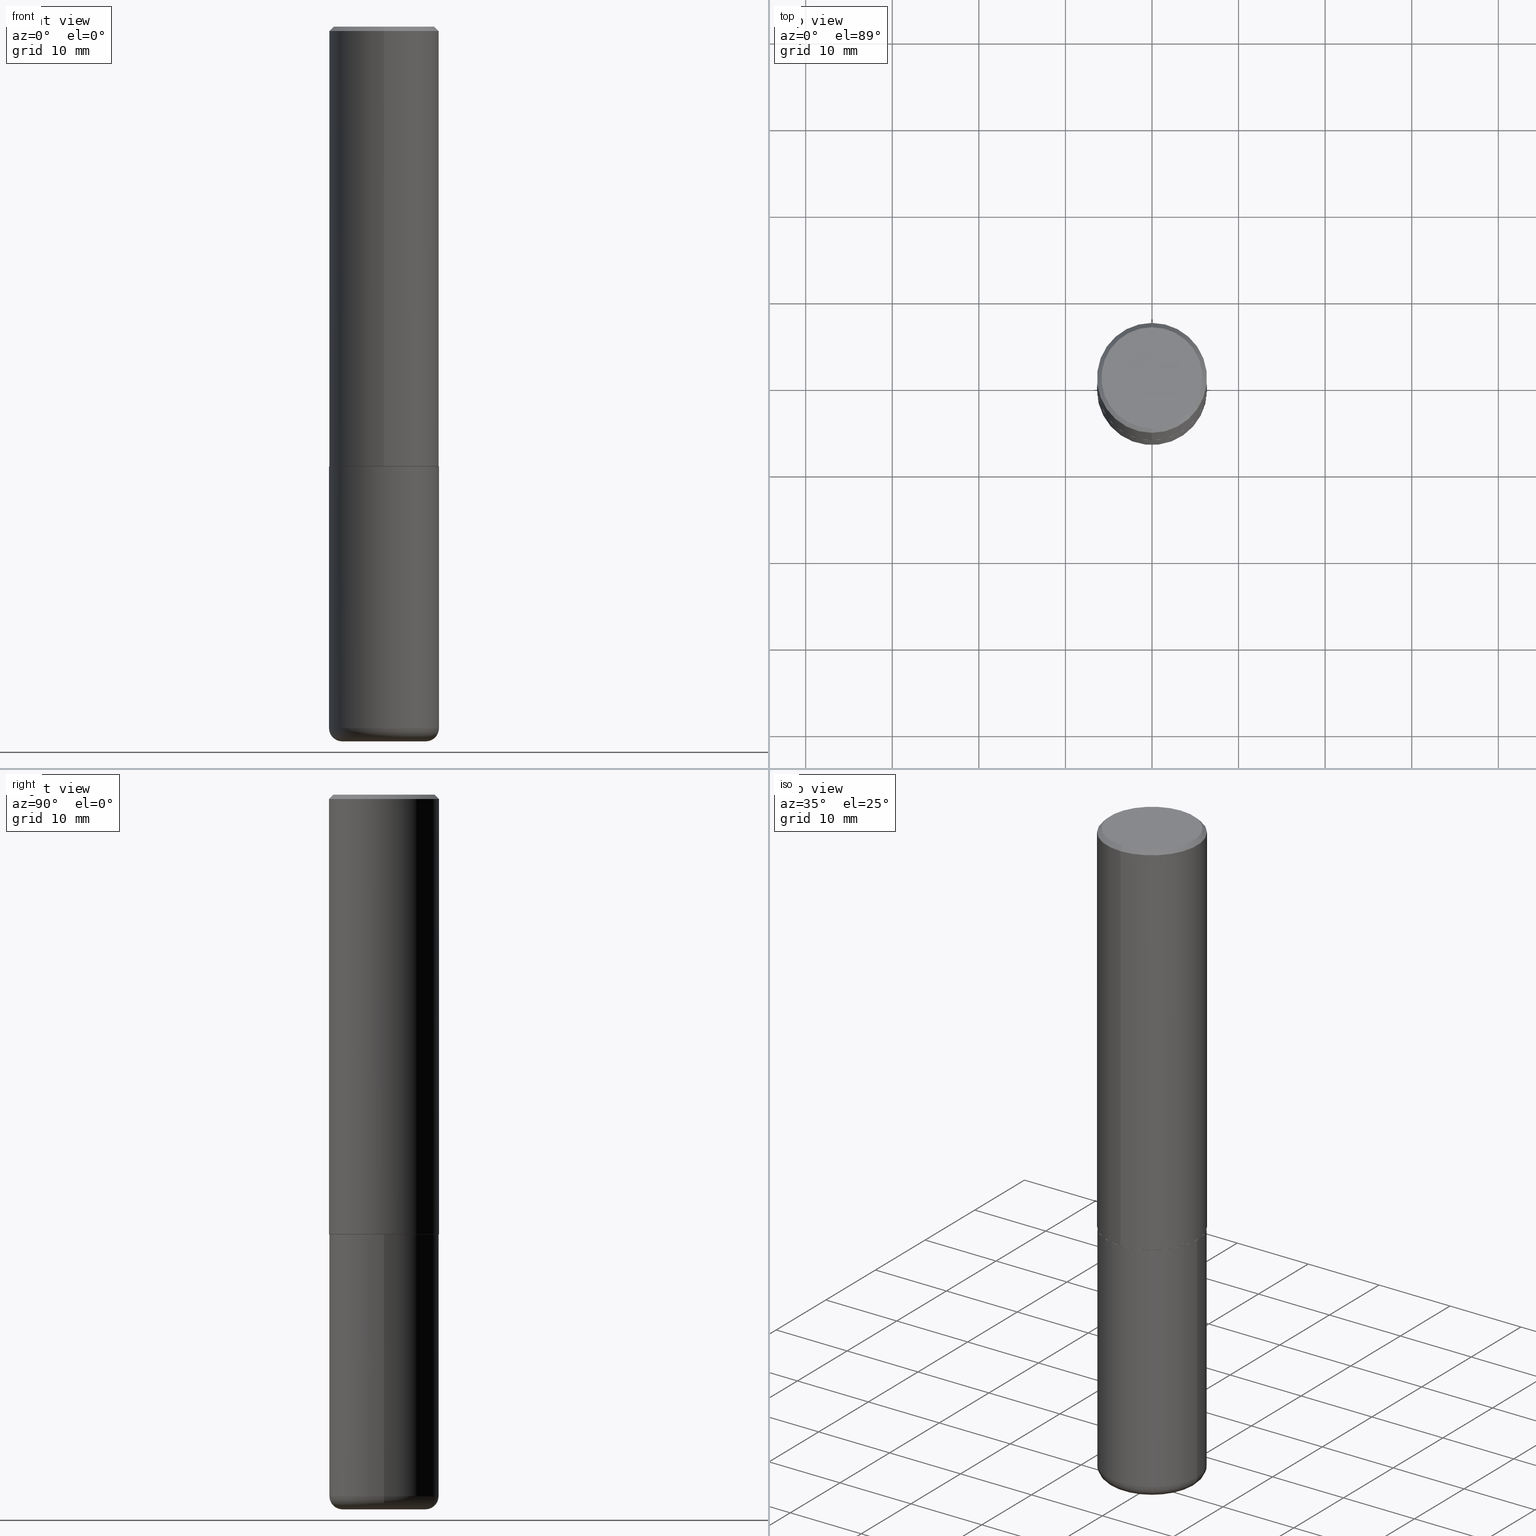
[diagram: canonical four-view strip — front | top / right | iso, engineering-drawing reading convention]
A machine part, canonical four-view strip (front | top / right | iso — engineering-drawing reading convention). The complete STEP part file that produces these views, byte-faithful:
ISO-10303-21;
HEADER;
FILE_DESCRIPTION (( 'STEP AP203' ),
    '1' );
FILE_NAME ('77350.STEP',
    '2024-05-02T19:31:13',
    ( '' ),
    ( '' ),
    'SwSTEP 2.0',
    'SolidWorks 2023',
    '' );
FILE_SCHEMA (( 'CONFIG_CONTROL_DESIGN' ));
ENDSEC;

DATA;
#1 = ORIENTED_EDGE ( 'NONE', *, *, #415, .F. ) ;
#2 = CARTESIAN_POINT ( 'NONE',  ( 4.888157982744351127E-29, -6.986943265517304311E-15, -2.000000000000000000 ) ) ;
#3 = DIRECTION ( 'NONE',  ( -2.444078991372175563E-29, 3.493471632758652550E-15, 1.000000000000000000 ) ) ;
#4 = COORDINATED_UNIVERSAL_TIME_OFFSET ( 5, 0, .BEHIND. ) ;
#5 = LOCAL_TIME ( 15, 31, 13.00000000000000000, #4 ) ;
#6 = ADVANCED_FACE ( 'NONE', ( #367 ), #71, .T. ) ;
#7 = DIRECTION ( 'NONE',  ( 1.000000000000000000, -6.982962677686270655E-15, 0.000000000000000000 ) ) ;
#8 = ORIENTED_EDGE ( 'NONE', *, *, #64, .T. ) ;
#9 = EDGE_LOOP ( 'NONE', ( #196, #36, #33, #401 ) ) ;
#10 = AXIS2_PLACEMENT_3D ( 'NONE', #218, #249, #280 ) ;
#11 = DIRECTION ( 'NONE',  ( -2.445468806185136597E-29, 3.491481338843145583E-15, 1.000000000000000000 ) ) ;
#12 = ORIENTED_EDGE ( 'NONE', *, *, #70, .T. ) ;
#13 = EDGE_CURVE ( 'NONE', #159, #324, #288, .T. ) ;
#14 = ORIENTED_EDGE ( 'NONE', *, *, #188, .T. ) ;
#15 = ADVANCED_FACE ( 'NONE', ( #131 ), #259, .F. ) ;
#16 = CARTESIAN_POINT ( 'NONE',  ( 1.606081415867839095E-15, 0.2299999999999997047, -6.474688858455407103E-16 ) ) ;
#17 = AXIS2_PLACEMENT_3D ( 'NONE', #177, #418, #84 ) ;
#18 = PLANE ( 'NONE',  #370 ) ;
#19 = ADVANCED_FACE ( 'NONE', ( #25 ), #83, .T. ) ;
#20 = CC_DESIGN_PERSON_AND_ORGANIZATION_ASSIGNMENT ( #278, #272, ( #337 ) ) ;
#21 = DIRECTION ( 'NONE',  ( -6.982962677686265922E-15, -1.000000000000000000, 3.278217592397112312E-15 ) ) ;
#22 = AXIS2_PLACEMENT_3D ( 'NONE', #237, #174, #21 ) ;
#23 = APPROVAL_PERSON_ORGANIZATION ( #119, #175, #209 ) ;
#24 = DIRECTION ( 'NONE',  ( -2.444078991372175563E-29, 3.493471632758652550E-15, 1.000000000000000000 ) ) ;
#25 = FACE_OUTER_BOUND ( 'NONE', #61, .T. ) ;
#26 = CARTESIAN_POINT ( 'NONE',  ( -1.745740669421519543E-15, -0.2500000000000072720, -1.998999999999999000 ) ) ;
#27 = DIRECTION ( 'NONE',  ( 1.000000000000000000, -6.982962677686261977E-15, 0.000000000000000000 ) ) ;
#28 = ORIENTED_EDGE ( 'NONE', *, *, #364, .F. ) ;
#29 = APPROVAL_PERSON_ORGANIZATION ( #271, #206, #153 ) ;
#30 = DIRECTION ( 'NONE',  ( 2.444078991372175563E-29, -3.493471632758652550E-15, -1.000000000000000000 ) ) ;
#31 = DATE_AND_TIME ( #147, #74 ) ;
#32 = DIRECTION ( 'NONE',  ( -6.982962677686265133E-15, -1.000000000000000000, 3.291383124896702687E-15 ) ) ;
#33 = ORIENTED_EDGE ( 'NONE', *, *, #239, .T. ) ;
#34 = CIRCLE ( 'NONE', #302, 0.05999999999999994227 ) ;
#35 = ORIENTED_EDGE ( 'NONE', *, *, #270, .F. ) ;
#36 = ORIENTED_EDGE ( 'NONE', *, *, #258, .T. ) ;
#37 = CARTESIAN_POINT ( 'NONE',  ( 0.000000000000000000, 0.000000000000000000, 0.000000000000000000 ) ) ;
#38 = AXIS2_PLACEMENT_3D ( 'NONE', #382, #30, #215 ) ;
#39 = MANIFOLD_SOLID_BREP ( 'Body-Move/Copy2[1]', #99 ) ;
#40 = ORIENTED_EDGE ( 'NONE', *, *, #332, .F. ) ;
#41 = EDGE_CURVE ( 'NONE', #226, #139, #394, .T. ) ;
#42 = DATE_TIME_ROLE ( 'creation_date' ) ;
#43 = CARTESIAN_POINT ( 'NONE',  ( 0.1899999999999999745, -1.246458837967002615E-14, -3.189999999999999947 ) ) ;
#44 = PLANE ( 'NONE',  #185 ) ;
#45 = DIRECTION ( 'NONE',  ( -2.445468806185136877E-29, 3.491481338843145188E-15, 1.000000000000000000 ) ) ;
#46 = CC_DESIGN_APPROVAL ( #206, ( #152 ) ) ;
#47 = COORDINATED_UNIVERSAL_TIME_OFFSET ( 5, 0, .BEHIND. ) ;
#48 = DIRECTION ( 'NONE',  ( 0.000000000000000000, 0.000000000000000000, 1.000000000000000000 ) ) ;
#49 = CARTESIAN_POINT ( 'NONE',  ( 0.000000000000000000, 0.000000000000000000, 0.000000000000000000 ) ) ;
#50 = PERSON_AND_ORGANIZATION ( #121, #336 ) ;
#51 = MECHANICAL_CONTEXT ( 'NONE', #340, 'mechanical' ) ;
#52 = DIRECTION ( 'NONE',  ( 7.105427357601001859E-15, 1.000000000000000000, -3.491481338843145583E-15 ) ) ;
#53 = DATE_AND_TIME ( #342, #95 ) ;
#54 = DIRECTION ( 'NONE',  ( -2.444078991372175563E-29, 3.493471632758652550E-15, 1.000000000000000000 ) ) ;
#55 = DIRECTION ( 'NONE',  ( -6.982962677686265922E-15, -1.000000000000000000, 3.493471632758652550E-15 ) ) ;
#56 = ORIENTED_EDGE ( 'NONE', *, *, #305, .T. ) ;
#57 = CIRCLE ( 'NONE', #162, 0.2500000000000002776 ) ;
#58 = TOROIDAL_SURFACE ( 'NONE', #322, 0.1899999999999999745, 0.05999999999999995615 ) ;
#59 = CARTESIAN_POINT ( 'NONE',  ( -0.1899999999999999745, -9.787794272965444556E-15, -3.189999999999999947 ) ) ;
#60 = PRODUCT_RELATED_PRODUCT_CATEGORY ( 'detail', '', ( #337 ) ) ;
#61 = EDGE_LOOP ( 'NONE', ( #198, #158, #223, #250 ) ) ;
#62 = APPROVAL_DATE_TIME ( #357, #349 ) ;
#63 = EDGE_LOOP ( 'NONE', ( #56, #75, #352, #356 ) ) ;
#64 = EDGE_CURVE ( 'NONE', #159, #348, #202, .T. ) ;
#65 = AXIS2_PLACEMENT_3D ( 'NONE', #374, #244, #378 ) ;
#66 = ORIENTED_EDGE ( 'NONE', *, *, #252, .F. ) ;
#67 = PERSON_AND_ORGANIZATION_ROLE ( 'design_supplier' ) ;
#68 = VERTEX_POINT ( 'NONE', #111 ) ;
#69 = CARTESIAN_POINT ( 'NONE',  ( 7.947773620101693940E-29, -1.134731435124022443E-14, -3.250000000000000000 ) ) ;
#70 = EDGE_CURVE ( 'NONE', #324, #159, #248, .T. ) ;
#71 = CYLINDRICAL_SURFACE ( 'NONE', #94, 0.2500000000000000000 ) ;
#72 = DIRECTION ( 'NONE',  ( -2.445468806185136597E-29, 3.491481338843145583E-15, 1.000000000000000000 ) ) ;
#73 = ORIENTED_EDGE ( 'NONE', *, *, #13, .F. ) ;
#74 = LOCAL_TIME ( 15, 31, 13.00000000000000000, #251 ) ;
#75 = ORIENTED_EDGE ( 'NONE', *, *, #246, .T. ) ;
#76 = ADVANCED_FACE ( 'NONE', ( #277 ), #409, .T. ) ;
#77 = DIRECTION ( 'NONE',  ( 1.000000000000000000, -6.982962677686265133E-15, 4.883557194083112340E-29 ) ) ;
#78 = DIRECTION ( 'NONE',  ( 1.000000000000000000, 0.000000000000000000, 0.000000000000000000 ) ) ;
#79 = CARTESIAN_POINT ( 'NONE',  ( 7.801045491730585789E-29, -1.113782547090963453E-14, -3.189999999999999947 ) ) ;
#80 = AXIS2_PLACEMENT_3D ( 'NONE', #49, #173, #404 ) ;
#81 = AXIS2_PLACEMENT_3D ( 'NONE', #156, #3, #128 ) ;
#82 = APPLICATION_CONTEXT ( 'configuration controlled 3d designs of mechanical parts and assemblies' ) ;
#83 = CYLINDRICAL_SURFACE ( 'NONE', #88, 0.2500000000000001110 ) ;
#84 = DIRECTION ( 'NONE',  ( -1.000000000000000000, 6.982962677686265922E-15, -4.876176775795935793E-29 ) ) ;
#85 = LINE ( 'NONE', #416, #343 ) ;
#86 = CARTESIAN_POINT ( 'NONE',  ( 0.2500000000000000000, -1.745740669421566678E-15, 1.219044193948983948E-29 ) ) ;
#87 = DIRECTION ( 'NONE',  ( 1.000000000000000000, -6.982962677686265133E-15, 4.883557194083112340E-29 ) ) ;
#88 = AXIS2_PLACEMENT_3D ( 'NONE', #269, #383, #211 ) ;
#89 = CARTESIAN_POINT ( 'NONE',  ( 1.745740669421567269E-15, 0.2499999999999999722, -0.02000000000000096492 ) ) ;
#90 = CARTESIAN_POINT ( 'NONE',  ( 0.2500000000000000000, -8.728703347107857054E-15, -2.000000000000000000 ) ) ;
#91 = ORIENTED_EDGE ( 'NONE', *, *, #364, .T. ) ;
#92 = FACE_OUTER_BOUND ( 'NONE', #298, .T. ) ;
#93 = DIRECTION ( 'NONE',  ( -4.937700262165053702E-15, -0.7071067811866175168, 0.7071067811864775177 ) ) ;
#94 = AXIS2_PLACEMENT_3D ( 'NONE', #37, #371, #329 ) ;
#95 = LOCAL_TIME ( 15, 31, 13.00000000000000000, #47 ) ;
#96 = EDGE_CURVE ( 'NONE', #369, #126, #85, .T. ) ;
#97 = UNCERTAINTY_MEASURE_WITH_UNIT (LENGTH_MEASURE( 1.000000000000000082E-05 ), #379, 'distance_accuracy_value', 'NONE');
#98 = ORIENTED_EDGE ( 'NONE', *, *, #372, .F. ) ;
#99 = CLOSED_SHELL ( 'NONE', ( #76, #299, #265, #6, #358, #390 ) ) ;
#100 = EDGE_LOOP ( 'NONE', ( #191, #231, #220, #190 ) ) ;
#101 = CARTESIAN_POINT ( 'NONE',  ( 7.947773620101693940E-29, -1.134731435124022443E-14, -3.250000000000000000 ) ) ;
#102 = EDGE_CURVE ( 'NONE', #126, #137, #403, .T. ) ;
#103 = EDGE_LOOP ( 'NONE', ( #327, #323 ) ) ;
#104 = SECURITY_CLASSIFICATION_LEVEL ( 'unclassified' ) ;
#105 = CARTESIAN_POINT ( 'NONE',  ( 7.801045491730585789E-29, -1.113782547090963453E-14, -3.189999999999999947 ) ) ;
#106 = CONICAL_SURFACE ( 'NONE', #10, 0.2500000000000000555, 0.7853981633974466137 ) ;
#107 = PERSON_AND_ORGANIZATION ( #121, #336 ) ;
#108 = VERTEX_POINT ( 'NONE', #334 ) ;
#109 = CIRCLE ( 'NONE', #295, 0.2500000000000000000 ) ;
#110 = CARTESIAN_POINT ( 'NONE',  ( 4.888157982744351127E-29, -6.986943265517304311E-15, -2.000000000000000000 ) ) ;
#111 = CARTESIAN_POINT ( 'NONE',  ( -1.646519519465166376E-15, -0.2299999999999997047, 1.115557654912385711E-15 ) ) ;
#112 = DIRECTION ( 'NONE',  ( -2.445468806185136597E-29, 3.491481338843145583E-15, 1.000000000000000000 ) ) ;
#113 = CONICAL_SURFACE ( 'NONE', #354, 0.2489999999999999991, 0.7853981633975507526 ) ;
#114 = AXIS2_PLACEMENT_3D ( 'NONE', #176, #48, #78 ) ;
#115 = CARTESIAN_POINT ( 'NONE',  ( 4.888157982744351127E-29, -6.986943265517304311E-15, -2.000000000000000000 ) ) ;
#116 = EDGE_CURVE ( 'NONE', #139, #126, #171, .T. ) ;
#117 = CARTESIAN_POINT ( 'NONE',  ( 0.000000000000000000, 0.000000000000000000, 0.000000000000000000 ) ) ;
#118 = CARTESIAN_POINT ( 'NONE',  ( 1.776356839400251254E-15, 0.2500000000000001110, -8.733679081896635319E-16 ) ) ;
#119 = PERSON_AND_ORGANIZATION ( #121, #336 ) ;
#120 = DIRECTION ( 'NONE',  ( -2.445468806185136597E-29, 3.491481338843145583E-15, 1.000000000000000000 ) ) ;
#121 = PERSON ( 'UNSPECIFIED', 'UNSPECIFIED', 'UNSPECIFIED', ('UNSPECIFIED'), ('UNSPECIFIED'), ('UNSPECIFIED') ) ;
#122 = DIRECTION ( 'NONE',  ( -2.444078991372175563E-29, 3.493471632758652550E-15, 1.000000000000000000 ) ) ;
#123 = PERSON_AND_ORGANIZATION ( #121, #336 ) ;
#124 = DIRECTION ( 'NONE',  ( -1.000000000000000000, 7.105427357600997914E-15, 0.000000000000000000 ) ) ;
#125 = DIRECTION ( 'NONE',  ( -2.444078991372175563E-29, 3.493471632758652550E-15, 1.000000000000000000 ) ) ;
#126 = VERTEX_POINT ( 'NONE', #89 ) ;
#127 = CARTESIAN_POINT ( 'NONE',  ( -1.738757706743831360E-15, -0.2490000000000069935, -1.999999999999999112 ) ) ;
#128 = DIRECTION ( 'NONE',  ( -6.982962677686265133E-15, -1.000000000000000000, 3.291383124896702687E-15 ) ) ;
#129 = SECURITY_CLASSIFICATION ( '', '', #104 ) ;
#130 = CC_DESIGN_PERSON_AND_ORGANIZATION_ASSIGNMENT ( #50, #217, ( #152 ) ) ;
#131 = FACE_OUTER_BOUND ( 'NONE', #359, .T. ) ;
#132 = DIRECTION ( 'NONE',  ( -2.444078991372175563E-29, 3.493471632758652550E-15, 1.000000000000000000 ) ) ;
#133 = AXIS2_PLACEMENT_3D ( 'NONE', #304, #275, #201 ) ;
#134 = ORIENTED_EDGE ( 'NONE', *, *, #41, .F. ) ;
#135 = CC_DESIGN_DATE_AND_TIME_ASSIGNMENT ( #297, #318, ( #129 ) ) ;
#136 = DIRECTION ( 'NONE',  ( -2.444078991372175563E-29, 3.493471632758652550E-15, 1.000000000000000000 ) ) ;
#137 = VERTEX_POINT ( 'NONE', #306 ) ;
#138 = PERSON_AND_ORGANIZATION ( #121, #336 ) ;
#139 = VERTEX_POINT ( 'NONE', #214 ) ;
#140 = VECTOR ( 'NONE', #143, 39.37007874015748143 ) ;
#141 = AXIS2_PLACEMENT_3D ( 'NONE', #388, #54, #55 ) ;
#142 = DIRECTION ( 'NONE',  ( 6.982962677686265922E-15, 1.000000000000000000, -3.493471632758652550E-15 ) ) ;
#143 = DIRECTION ( 'NONE',  ( -2.445468806185136877E-29, 3.491481338843145188E-15, 1.000000000000000000 ) ) ;
#144 = DIRECTION ( 'NONE',  ( 1.000000000000000000, -6.982962677686270655E-15, 0.000000000000000000 ) ) ;
#145 = CIRCLE ( 'NONE', #257, 0.2500000000000000000 ) ;
#146 = FACE_OUTER_BOUND ( 'NONE', #103, .T. ) ;
#147 = CALENDAR_DATE ( 2024, 2, 5 ) ;
#148 = FACE_OUTER_BOUND ( 'NONE', #63, .T. ) ;
#149 = EDGE_CURVE ( 'NONE', #324, #330, #273, .T. ) ;
#150 = EDGE_LOOP ( 'NONE', ( #392, #28 ) ) ;
#151 = AXIS2_PLACEMENT_3D ( 'NONE', #105, #291, #7 ) ;
#152 = PRODUCT_DEFINITION_FORMATION_WITH_SPECIFIED_SOURCE ( 'ANY', '', #337, .NOT_KNOWN. ) ;
#153 = APPROVAL_ROLE ( '' ) ;
#154 = LINE ( 'NONE', #253, #328 ) ;
#155 = ORIENTED_EDGE ( 'NONE', *, *, #102, .T. ) ;
#156 = CARTESIAN_POINT ( 'NONE',  ( 4.888157982744351127E-29, -6.986943265517304311E-15, -2.000000000000000000 ) ) ;
#157 = AXIS2_PLACEMENT_3D ( 'NONE', #79, #172, #144 ) ;
#158 = ORIENTED_EDGE ( 'NONE', *, *, #213, .T. ) ;
#159 = VERTEX_POINT ( 'NONE', #381 ) ;
#160 = EDGE_LOOP ( 'NONE', ( #285, #266, #313, #98 ) ) ;
#161 = CARTESIAN_POINT ( 'NONE',  ( 4.888157982744373443E-31, -6.986943265517335816E-17, -0.02000000000000009062 ) ) ;
#162 = AXIS2_PLACEMENT_3D ( 'NONE', #314, #24, #284 ) ;
#163 = COORDINATED_UNIVERSAL_TIME_OFFSET ( 5, 0, .BEHIND. ) ;
#164 = ORIENTED_EDGE ( 'NONE', *, *, #239, .F. ) ;
#165 = CALENDAR_DATE ( 2024, 2, 5 ) ;
#166 = ORIENTED_EDGE ( 'NONE', *, *, #258, .F. ) ;
#167 = ADVANCED_FACE ( 'NONE', ( #405 ), #361, .T. ) ;
#168 = AXIS2_PLACEMENT_3D ( 'NONE', #115, #407, #241 ) ;
#169 = DIRECTION ( 'NONE',  ( -2.444078991372175283E-29, 3.493471632758652550E-15, 1.000000000000000000 ) ) ;
#170 = VECTOR ( 'NONE', #187, 39.37007874015748854 ) ;
#171 = LINE ( 'NONE', #118, #321 ) ;
#172 = DIRECTION ( 'NONE',  ( -2.445468806185136597E-29, 3.491481338843145583E-15, 1.000000000000000000 ) ) ;
#173 = DIRECTION ( 'NONE',  ( -2.444078991372175563E-29, 3.493471632758652550E-15, 1.000000000000000000 ) ) ;
#174 = DIRECTION ( 'NONE',  ( -2.444078991372175563E-29, 3.493471632758652550E-15, 1.000000000000000000 ) ) ;
#175 = APPROVAL ( #373, 'UNSPECIFIED' ) ;
#176 = CARTESIAN_POINT ( 'NONE',  ( 0.000000000000000000, 0.000000000000000000, 0.000000000000000000 ) ) ;
#177 = CARTESIAN_POINT ( 'NONE',  ( 4.890937612370273194E-29, -6.982962677686291165E-15, -2.000000000000000000 ) ) ;
#178 = CIRCLE ( 'NONE', #228, 0.2500000000000000555 ) ;
#179 = PERSON_AND_ORGANIZATION ( #121, #336 ) ;
#180 = ADVANCED_FACE ( 'NONE', ( #207 ), #341, .T. ) ;
#181 = CARTESIAN_POINT ( 'NONE',  ( -0.2500000000000000000, -7.284037234897712778E-15, -2.000000000000000000 ) ) ;
#182 = ORIENTED_EDGE ( 'NONE', *, *, #332, .T. ) ;
#183 = FACE_OUTER_BOUND ( 'NONE', #9, .T. ) ;
#184 = ORIENTED_EDGE ( 'NONE', *, *, #376, .T. ) ;
#185 = AXIS2_PLACEMENT_3D ( 'NONE', #110, #169, #389 ) ;
#186 = LOCAL_TIME ( 15, 31, 13.00000000000000000, #268 ) ;
#187 = DIRECTION ( 'NONE',  ( -4.851104656540954809E-15, -0.7071067811865486830, -0.7071067811865462405 ) ) ;
#188 = EDGE_CURVE ( 'NONE', #68, #369, #227, .T. ) ;
#189 = CC_DESIGN_APPROVAL ( #349, ( #129 ) ) ;
#190 = ORIENTED_EDGE ( 'NONE', *, *, #96, .F. ) ;
#191 = ORIENTED_EDGE ( 'NONE', *, *, #188, .F. ) ;
#192 = ORIENTED_EDGE ( 'NONE', *, *, #225, .F. ) ;
#193 = DIRECTION ( 'NONE',  ( -6.982962677686266711E-15, -1.000000000000000000, 3.491481338843145583E-15 ) ) ;
#194 = AXIS2_PLACEMENT_3D ( 'NONE', #16, #377, #142 ) ;
#195 =( GEOMETRIC_REPRESENTATION_CONTEXT ( 3 ) GLOBAL_UNCERTAINTY_ASSIGNED_CONTEXT ( ( #97 ) ) GLOBAL_UNIT_ASSIGNED_CONTEXT ( ( #379, #339, #274 ) ) REPRESENTATION_CONTEXT ( 'NONE', 'WORKASPACE' ) );
#196 = ORIENTED_EDGE ( 'NONE', *, *, #320, .F. ) ;
#197 = ADVANCED_FACE ( 'NONE', ( #242 ), #44, .F. ) ;
#198 = ORIENTED_EDGE ( 'NONE', *, *, #116, .F. ) ;
#199 = DATE_AND_TIME ( #205, #186 ) ;
#200 = CARTESIAN_POINT ( 'NONE',  ( 1.675911042644703182E-15, 0.2299999999999997047, -4.914392961565924424E-16 ) ) ;
#201 = DIRECTION ( 'NONE',  ( -6.982962677686265922E-15, -1.000000000000000000, 3.493471632758652550E-15 ) ) ;
#202 = LINE ( 'NONE', #333, #256 ) ;
#203 = ADVANCED_FACE ( 'NONE', ( #183 ), #113, .T. ) ;
#204 = CIRCLE ( 'NONE', #81, 0.2489999999999999991 ) ;
#205 = CALENDAR_DATE ( 2024, 2, 5 ) ;
#206 = APPROVAL ( #387, 'UNSPECIFIED' ) ;
#207 = FACE_OUTER_BOUND ( 'NONE', #160, .T. ) ;
#208 = DIRECTION ( 'NONE',  ( -2.445468806185136597E-29, 3.491481338843145583E-15, 1.000000000000000000 ) ) ;
#209 = APPROVAL_ROLE ( '' ) ;
#210 = DIRECTION ( 'NONE',  ( 5.024295867788576727E-15, 0.7071067811866224018, 0.7071067811864726327 ) ) ;
#211 = DIRECTION ( 'NONE',  ( -6.982962677686266711E-15, -1.000000000000000000, 3.493471632758652550E-15 ) ) ;
#212 = AXIS2_PLACEMENT_3D ( 'NONE', #69, #11, #368 ) ;
#213 = EDGE_CURVE ( 'NONE', #139, #226, #57, .T. ) ;
#214 = CARTESIAN_POINT ( 'NONE',  ( 1.776356839400276103E-15, 0.2499999999999932832, -1.999000000000000776 ) ) ;
#215 = DIRECTION ( 'NONE',  ( 6.982962677686265133E-15, 1.000000000000000000, -3.500180241882336472E-15 ) ) ;
#216 = CARTESIAN_POINT ( 'NONE',  ( -1.715124499442882496E-15, -0.2500000000000001110, -0.01999999999999921632 ) ) ;
#217 = PERSON_AND_ORGANIZATION_ROLE ( 'creator' ) ;
#218 = CARTESIAN_POINT ( 'NONE',  ( 4.888157982744373443E-31, -6.986943265517335816E-17, -0.02000000000000009062 ) ) ;
#219 = ADVANCED_FACE ( 'NONE', ( #353 ), #106, .T. ) ;
#220 = ORIENTED_EDGE ( 'NONE', *, *, #393, .T. ) ;
#221 = CIRCLE ( 'NONE', #363, 0.2489999999999999991 ) ;
#222 = AXIS2_PLACEMENT_3D ( 'NONE', #247, #385, #27 ) ;
#223 = ORIENTED_EDGE ( 'NONE', *, *, #372, .T. ) ;
#224 = DIMENSIONAL_EXPONENTS ( 1.000000000000000000, 0.000000000000000000, 0.000000000000000000, 0.000000000000000000, 0.000000000000000000, 0.000000000000000000, 0.000000000000000000 ) ;
#225 = EDGE_CURVE ( 'NONE', #233, #397, #221, .T. ) ;
#226 = VERTEX_POINT ( 'NONE', #26 ) ;
#227 = CIRCLE ( 'NONE', #133, 0.2299999999999997047 ) ;
#228 = AXIS2_PLACEMENT_3D ( 'NONE', #161, #136, #264 ) ;
#229 = ORIENTED_EDGE ( 'NONE', *, *, #225, .T. ) ;
#230 = DIRECTION ( 'NONE',  ( 2.438088387897960049E-29, -3.491481338843145188E-15, -1.000000000000000000 ) ) ;
#231 = ORIENTED_EDGE ( 'NONE', *, *, #252, .T. ) ;
#232 = ADVANCED_FACE ( 'NONE', ( #286 ), #240, .T. ) ;
#233 = VERTEX_POINT ( 'NONE', #127 ) ;
#234 = CARTESIAN_POINT ( 'NONE',  ( 1.772804125721499462E-15, 0.2489999999999930047, -2.000000000000000888 ) ) ;
#235 = CC_DESIGN_SECURITY_CLASSIFICATION ( #129, ( #152 ) ) ;
#236 = EDGE_LOOP ( 'NONE', ( #12, #8, #1, #362 ) ) ;
#237 = CARTESIAN_POINT ( 'NONE',  ( 4.885713903752978284E-29, -6.983449793884546288E-15, -1.998999999999999888 ) ) ;
#238 = LENGTH_MEASURE_WITH_UNIT ( LENGTH_MEASURE( 0.02539999999999999897 ), #335 );
#239 = EDGE_CURVE ( 'NONE', #233, #226, #154, .T. ) ;
#240 = CONICAL_SURFACE ( 'NONE', #38, 0.2500000000000000555, 0.7853981633974466137 ) ;
#241 = DIRECTION ( 'NONE',  ( -6.982962677686265133E-15, -1.000000000000000000, 3.291383124896702687E-15 ) ) ;
#242 = FACE_OUTER_BOUND ( 'NONE', #263, .T. ) ;
#243 = DIRECTION ( 'NONE',  ( -2.445468806185136597E-29, 3.491481338843145583E-15, 1.000000000000000000 ) ) ;
#244 = DIRECTION ( 'NONE',  ( -2.444078991372175563E-29, 3.493471632758652550E-15, 1.000000000000000000 ) ) ;
#245 = DIRECTION ( 'NONE',  ( -6.982962677686265133E-15, -1.000000000000000000, 3.291383124896702687E-15 ) ) ;
#246 = EDGE_CURVE ( 'NONE', #108, #159, #290, .T. ) ;
#247 = CARTESIAN_POINT ( 'NONE',  ( 7.947773620101693940E-29, -1.134731435124022443E-14, -3.250000000000000000 ) ) ;
#248 = CIRCLE ( 'NONE', #157, 0.2500000000000000000 ) ;
#249 = DIRECTION ( 'NONE',  ( 2.444078991372175563E-29, -3.493471632758652550E-15, -1.000000000000000000 ) ) ;
#250 = ORIENTED_EDGE ( 'NONE', *, *, #102, .F. ) ;
#251 = COORDINATED_UNIVERSAL_TIME_OFFSET ( 5, 0, .BEHIND. ) ;
#252 = EDGE_CURVE ( 'NONE', #68, #137, #255, .T. ) ;
#253 = CARTESIAN_POINT ( 'NONE',  ( -1.738757706743831360E-15, -0.2490000000000069935, -1.999999999999999112 ) ) ;
#254 = VERTEX_POINT ( 'NONE', #317 ) ;
#255 = LINE ( 'NONE', #216, #170 ) ;
#256 = VECTOR ( 'NONE', #45, 39.37007874015748143 ) ;
#257 = AXIS2_PLACEMENT_3D ( 'NONE', #350, #208, #311 ) ;
#258 = EDGE_CURVE ( 'NONE', #397, #233, #204, .T. ) ;
#259 = PLANE ( 'NONE',  #194 ) ;
#260 = ORIENTED_EDGE ( 'NONE', *, *, #64, .F. ) ;
#261 = LOCAL_TIME ( 15, 31, 13.00000000000000000, #163 ) ;
#262 = FACE_OUTER_BOUND ( 'NONE', #150, .T. ) ;
#263 = EDGE_LOOP ( 'NONE', ( #192, #166 ) ) ;
#264 = DIRECTION ( 'NONE',  ( -6.982962677686265133E-15, -1.000000000000000000, 3.500180241882336472E-15 ) ) ;
#265 = ADVANCED_FACE ( 'NONE', ( #146 ), #414, .F. ) ;
#266 = ORIENTED_EDGE ( 'NONE', *, *, #116, .T. ) ;
#267 = EDGE_LOOP ( 'NONE', ( #66, #40, #365, #155 ) ) ;
#268 = COORDINATED_UNIVERSAL_TIME_OFFSET ( 5, 0, .BEHIND. ) ;
#269 = CARTESIAN_POINT ( 'NONE',  ( 0.000000000000000000, 0.000000000000000000, 0.000000000000000000 ) ) ;
#270 = EDGE_CURVE ( 'NONE', #348, #330, #145, .T. ) ;
#271 = PERSON_AND_ORGANIZATION ( #121, #336 ) ;
#272 = PERSON_AND_ORGANIZATION_ROLE ( 'design_owner' ) ;
#273 = LINE ( 'NONE', #86, #140 ) ;
#274 =( NAMED_UNIT ( * ) SI_UNIT ( $, .STERADIAN. ) SOLID_ANGLE_UNIT ( ) );
#275 = DIRECTION ( 'NONE',  ( -2.444078991372175563E-29, 3.493471632758652550E-15, 1.000000000000000000 ) ) ;
#276 = VECTOR ( 'NONE', #132, 39.37007874015748143 ) ;
#277 = FACE_OUTER_BOUND ( 'NONE', #236, .T. ) ;
#278 = PERSON_AND_ORGANIZATION ( #121, #336 ) ;
#279 = CARTESIAN_POINT ( 'NONE',  ( 7.801045491730585789E-29, -1.113782547090963453E-14, -3.189999999999999947 ) ) ;
#280 = DIRECTION ( 'NONE',  ( 6.982962677686265133E-15, 1.000000000000000000, -3.500180241882336472E-15 ) ) ;
#281 = ORIENTED_EDGE ( 'NONE', *, *, #320, .T. ) ;
#282 = CARTESIAN_POINT ( 'NONE',  ( 7.801045491730585789E-29, -1.113782547090963453E-14, -3.189999999999999947 ) ) ;
#283 = CLOSED_SHELL ( 'NONE', ( #167, #180, #232, #219, #19, #203, #197, #15 ) ) ;
#284 = DIRECTION ( 'NONE',  ( -6.982962677686265922E-15, -1.000000000000000000, 3.278217592397112312E-15 ) ) ;
#285 = ORIENTED_EDGE ( 'NONE', *, *, #41, .T. ) ;
#286 = FACE_OUTER_BOUND ( 'NONE', #100, .T. ) ;
#287 = APPROVAL_ROLE ( '' ) ;
#288 = CIRCLE ( 'NONE', #151, 0.2500000000000000000 ) ;
#289 = ADVANCED_BREP_SHAPE_REPRESENTATION ( '77350', ( #39, #319, #114 ), #195 ) ;
#290 = CIRCLE ( 'NONE', #316, 0.05999999999999994227 ) ;
#291 = DIRECTION ( 'NONE',  ( -2.445468806185136597E-29, 3.491481338843145583E-15, 1.000000000000000000 ) ) ;
#292 = ORIENTED_EDGE ( 'NONE', *, *, #246, .F. ) ;
#293 = LINE ( 'NONE', #331, #276 ) ;
#294 = EDGE_LOOP ( 'NONE', ( #229, #281, #134, #164 ) ) ;
#295 = AXIS2_PLACEMENT_3D ( 'NONE', #400, #112, #413 ) ;
#296 = EDGE_LOOP ( 'NONE', ( #260, #399, #402, #35 ) ) ;
#297 = DATE_AND_TIME ( #165, #261 ) ;
#298 = EDGE_LOOP ( 'NONE', ( #292, #91, #184, #73 ) ) ;
#299 = ADVANCED_FACE ( 'NONE', ( #148 ), #58, .T. ) ;
#300 = APPROVAL_STATUS ( 'not_yet_approved' ) ;
#301 = DIRECTION ( 'NONE',  ( 1.000000000000000000, -6.982962677686274599E-15, 0.000000000000000000 ) ) ;
#302 = AXIS2_PLACEMENT_3D ( 'NONE', #43, #193, #301 ) ;
#303 = APPLICATION_PROTOCOL_DEFINITION ( 'international standard', 'config_control_design', 1994, #340 ) ;
#304 = CARTESIAN_POINT ( 'NONE',  ( -7.626972843823584403E-45, 1.090169890898625670E-30, 3.120591793778966343E-16 ) ) ;
#305 = EDGE_CURVE ( 'NONE', #254, #108, #391, .T. ) ;
#306 = CARTESIAN_POINT ( 'NONE',  ( -1.715124499442882496E-15, -0.2500000000000001110, -0.01999999999999921632 ) ) ;
#307 = LINE ( 'NONE', #346, #398 ) ;
#308 = AXIS2_PLACEMENT_3D ( 'NONE', #282, #72, #77 ) ;
#309 = PERSON_AND_ORGANIZATION_ROLE ( 'creator' ) ;
#310 = DIRECTION ( 'NONE',  ( -2.444078991372175563E-29, 3.493471632758652550E-15, 1.000000000000000000 ) ) ;
#311 = DIRECTION ( 'NONE',  ( 1.000000000000000000, -6.982962677686266711E-15, 0.000000000000000000 ) ) ;
#312 = PRODUCT_DEFINITION_SHAPE ( 'NONE', 'NONE',  #386 ) ;
#313 = ORIENTED_EDGE ( 'NONE', *, *, #393, .F. ) ;
#314 = CARTESIAN_POINT ( 'NONE',  ( 4.885713903752978284E-29, -6.983449793884546288E-15, -1.998999999999999888 ) ) ;
#315 = AXIS2_PLACEMENT_3D ( 'NONE', #117, #243, #380 ) ;
#316 = AXIS2_PLACEMENT_3D ( 'NONE', #59, #52, #124 ) ;
#317 = CARTESIAN_POINT ( 'NONE',  ( 0.1899999999999999745, -1.267407726000061289E-14, -3.250000000000000000 ) ) ;
#318 = DATE_TIME_ROLE ( 'classification_date' ) ;
#319 = MANIFOLD_SOLID_BREP ( 'Body-Move/Copy2[2]', #283 ) ;
#320 = EDGE_CURVE ( 'NONE', #397, #139, #307, .T. ) ;
#321 = VECTOR ( 'NONE', #122, 39.37007874015748143 ) ;
#322 = AXIS2_PLACEMENT_3D ( 'NONE', #279, #120, #87 ) ;
#323 = ORIENTED_EDGE ( 'NONE', *, *, #270, .T. ) ;
#324 = VERTEX_POINT ( 'NONE', #344 ) ;
#325 = DIRECTION ( 'NONE',  ( -1.000000000000000000, 6.982962677686265922E-15, -4.876176775795935793E-29 ) ) ;
#326 = CC_DESIGN_DATE_AND_TIME_ASSIGNMENT ( #199, #42, ( #386 ) ) ;
#327 = ORIENTED_EDGE ( 'NONE', *, *, #415, .T. ) ;
#328 = VECTOR ( 'NONE', #93, 39.37007874015748143 ) ;
#329 = DIRECTION ( 'NONE',  ( 1.000000000000000000, -6.982962677686266711E-15, 4.876176775795935793E-29 ) ) ;
#330 = VERTEX_POINT ( 'NONE', #90 ) ;
#331 = CARTESIAN_POINT ( 'NONE',  ( -1.745740669421567467E-15, -0.2500000000000001110, 8.733679081896635319E-16 ) ) ;
#332 = EDGE_CURVE ( 'NONE', #369, #68, #355, .T. ) ;
#333 = CARTESIAN_POINT ( 'NONE',  ( -0.2500000000000000000, 1.776356839400250465E-15, -1.229733772563726445E-29 ) ) ;
#334 = CARTESIAN_POINT ( 'NONE',  ( -0.1899999999999999745, -9.679375892402709259E-15, -3.250000000000000000 ) ) ;
#335 =( LENGTH_UNIT ( ) NAMED_UNIT ( * ) SI_UNIT ( $, .METRE. ) );
#336 = ORGANIZATION ( 'UNSPECIFIED', 'UNSPECIFIED', '' ) ;
#337 = PRODUCT ( '77350', '77350', '', ( #51 ) ) ;
#338 = DIRECTION ( 'NONE',  ( 4.937700262164538576E-15, 0.7071067811865437980, -0.7071067811865511255 ) ) ;
#339 =( NAMED_UNIT ( * ) PLANE_ANGLE_UNIT ( ) SI_UNIT ( $, .RADIAN. ) );
#340 = APPLICATION_CONTEXT ( 'configuration controlled 3d designs of mechanical parts and assemblies' ) ;
#341 = CYLINDRICAL_SURFACE ( 'NONE', #80, 0.2500000000000001110 ) ;
#342 = CALENDAR_DATE ( 2024, 2, 5 ) ;
#343 = VECTOR ( 'NONE', #338, 39.37007874015748854 ) ;
#344 = CARTESIAN_POINT ( 'NONE',  ( 0.2499999999999999722, -1.288356614033120121E-14, -3.189999999999999947 ) ) ;
#345 = APPROVAL_PERSON_ORGANIZATION ( #138, #349, #287 ) ;
#346 = CARTESIAN_POINT ( 'NONE',  ( 1.769251412042697971E-15, 0.2489999999999930047, -2.000000000000000888 ) ) ;
#347 = SHAPE_DEFINITION_REPRESENTATION ( #312, #289 ) ;
#348 = VERTEX_POINT ( 'NONE', #181 ) ;
#349 = APPROVAL ( #300, 'UNSPECIFIED' ) ;
#350 = CARTESIAN_POINT ( 'NONE',  ( 4.890937612370273194E-29, -6.982962677686291165E-15, -2.000000000000000000 ) ) ;
#351 = CALENDAR_DATE ( 2024, 2, 5 ) ;
#352 = ORIENTED_EDGE ( 'NONE', *, *, #70, .F. ) ;
#353 = FACE_OUTER_BOUND ( 'NONE', #267, .T. ) ;
#354 = AXIS2_PLACEMENT_3D ( 'NONE', #411, #125, #245 ) ;
#355 = CIRCLE ( 'NONE', #141, 0.2299999999999997047 ) ;
#356 = ORIENTED_EDGE ( 'NONE', *, *, #376, .F. ) ;
#357 = DATE_AND_TIME ( #351, #5 ) ;
#358 = ADVANCED_FACE ( 'NONE', ( #92 ), #417, .T. ) ;
#359 = EDGE_LOOP ( 'NONE', ( #182, #14 ) ) ;
#360 = CC_DESIGN_PERSON_AND_ORGANIZATION_ASSIGNMENT ( #107, #396, ( #129 ) ) ;
#361 = CONICAL_SURFACE ( 'NONE', #168, 0.2489999999999999991, 0.7853981633975507526 ) ;
#362 = ORIENTED_EDGE ( 'NONE', *, *, #149, .F. ) ;
#363 = AXIS2_PLACEMENT_3D ( 'NONE', #2, #310, #32 ) ;
#364 = EDGE_CURVE ( 'NONE', #108, #254, #384, .T. ) ;
#365 = ORIENTED_EDGE ( 'NONE', *, *, #96, .T. ) ;
#366 = CC_DESIGN_PERSON_AND_ORGANIZATION_ASSIGNMENT ( #123, #67, ( #152 ) ) ;
#367 = FACE_OUTER_BOUND ( 'NONE', #296, .T. ) ;
#368 = DIRECTION ( 'NONE',  ( 1.000000000000000000, -6.982962677686261977E-15, 0.000000000000000000 ) ) ;
#369 = VERTEX_POINT ( 'NONE', #200 ) ;
#370 = AXIS2_PLACEMENT_3D ( 'NONE', #101, #230, #325 ) ;
#371 = DIRECTION ( 'NONE',  ( -2.445468806185136597E-29, 3.491481338843145583E-15, 1.000000000000000000 ) ) ;
#372 = EDGE_CURVE ( 'NONE', #226, #137, #293, .T. ) ;
#373 = APPROVAL_STATUS ( 'not_yet_approved' ) ;
#374 = CARTESIAN_POINT ( 'NONE',  ( 4.888157982744373443E-31, -6.986943265517335816E-17, -0.02000000000000009062 ) ) ;
#375 = CC_DESIGN_APPROVAL ( #175, ( #386 ) ) ;
#376 = EDGE_CURVE ( 'NONE', #254, #324, #34, .T. ) ;
#377 = DIRECTION ( 'NONE',  ( 2.444078991372175283E-29, -3.493471632758652550E-15, -1.000000000000000000 ) ) ;
#378 = DIRECTION ( 'NONE',  ( -6.982962677686265133E-15, -1.000000000000000000, 3.500180241882336472E-15 ) ) ;
#379 =( CONVERSION_BASED_UNIT ( 'INCH', #238 ) LENGTH_UNIT ( ) NAMED_UNIT ( #224 ) );
#380 = DIRECTION ( 'NONE',  ( 1.000000000000000000, -6.982962677686266711E-15, 4.876176775795935793E-29 ) ) ;
#381 = CARTESIAN_POINT ( 'NONE',  ( -0.2499999999999999722, -9.361468631509382488E-15, -3.189999999999999947 ) ) ;
#382 = CARTESIAN_POINT ( 'NONE',  ( 4.888157982744373443E-31, -6.986943265517335816E-17, -0.02000000000000009062 ) ) ;
#383 = DIRECTION ( 'NONE',  ( -2.444078991372175563E-29, 3.493471632758652550E-15, 1.000000000000000000 ) ) ;
#384 = CIRCLE ( 'NONE', #212, 0.1899999999999999745 ) ;
#385 = DIRECTION ( 'NONE',  ( -2.445468806185136597E-29, 3.491481338843145583E-15, 1.000000000000000000 ) ) ;
#386 = PRODUCT_DEFINITION ( 'UNKNOWN', '', #152, #395 ) ;
#387 = APPROVAL_STATUS ( 'not_yet_approved' ) ;
#388 = CARTESIAN_POINT ( 'NONE',  ( -7.626972843823584403E-45, 1.090169890898625670E-30, 3.120591793778966343E-16 ) ) ;
#389 = DIRECTION ( 'NONE',  ( -6.982962677686265922E-15, -1.000000000000000000, 3.493471632758652550E-15 ) ) ;
#390 = ADVANCED_FACE ( 'NONE', ( #262 ), #18, .T. ) ;
#391 = CIRCLE ( 'NONE', #222, 0.1899999999999999745 ) ;
#392 = ORIENTED_EDGE ( 'NONE', *, *, #305, .F. ) ;
#393 = EDGE_CURVE ( 'NONE', #137, #126, #178, .T. ) ;
#394 = CIRCLE ( 'NONE', #22, 0.2500000000000002776 ) ;
#395 = DESIGN_CONTEXT ( 'detailed design', #82, 'design' ) ;
#396 = PERSON_AND_ORGANIZATION_ROLE ( 'classification_officer' ) ;
#397 = VERTEX_POINT ( 'NONE', #234 ) ;
#398 = VECTOR ( 'NONE', #210, 39.37007874015748143 ) ;
#399 = ORIENTED_EDGE ( 'NONE', *, *, #13, .T. ) ;
#400 = CARTESIAN_POINT ( 'NONE',  ( 4.890937612370273194E-29, -6.982962677686291165E-15, -2.000000000000000000 ) ) ;
#401 = ORIENTED_EDGE ( 'NONE', *, *, #213, .F. ) ;
#402 = ORIENTED_EDGE ( 'NONE', *, *, #149, .T. ) ;
#403 = CIRCLE ( 'NONE', #65, 0.2500000000000000555 ) ;
#404 = DIRECTION ( 'NONE',  ( -6.982962677686266711E-15, -1.000000000000000000, 3.493471632758652550E-15 ) ) ;
#405 = FACE_OUTER_BOUND ( 'NONE', #294, .T. ) ;
#406 = APPROVAL_DATE_TIME ( #53, #175 ) ;
#407 = DIRECTION ( 'NONE',  ( -2.444078991372175563E-29, 3.493471632758652550E-15, 1.000000000000000000 ) ) ;
#408 = CC_DESIGN_PERSON_AND_ORGANIZATION_ASSIGNMENT ( #179, #309, ( #386 ) ) ;
#409 = CYLINDRICAL_SURFACE ( 'NONE', #315, 0.2500000000000000000 ) ;
#410 = APPLICATION_PROTOCOL_DEFINITION ( 'international standard', 'config_control_design', 1994, #82 ) ;
#411 = CARTESIAN_POINT ( 'NONE',  ( 4.888157982744351127E-29, -6.986943265517304311E-15, -2.000000000000000000 ) ) ;
#412 = APPROVAL_DATE_TIME ( #31, #206 ) ;
#413 = DIRECTION ( 'NONE',  ( 1.000000000000000000, -6.982962677686266711E-15, 0.000000000000000000 ) ) ;
#414 = PLANE ( 'NONE',  #17 ) ;
#415 = EDGE_CURVE ( 'NONE', #330, #348, #109, .T. ) ;
#416 = CARTESIAN_POINT ( 'NONE',  ( 1.745740669421567269E-15, 0.2499999999999999722, -0.02000000000000096492 ) ) ;
#417 = TOROIDAL_SURFACE ( 'NONE', #308, 0.1899999999999999745, 0.05999999999999995615 ) ;
#418 = DIRECTION ( 'NONE',  ( 2.438088387897960049E-29, -3.491481338843145188E-15, -1.000000000000000000 ) ) ;
ENDSEC;
END-ISO-10303-21;
